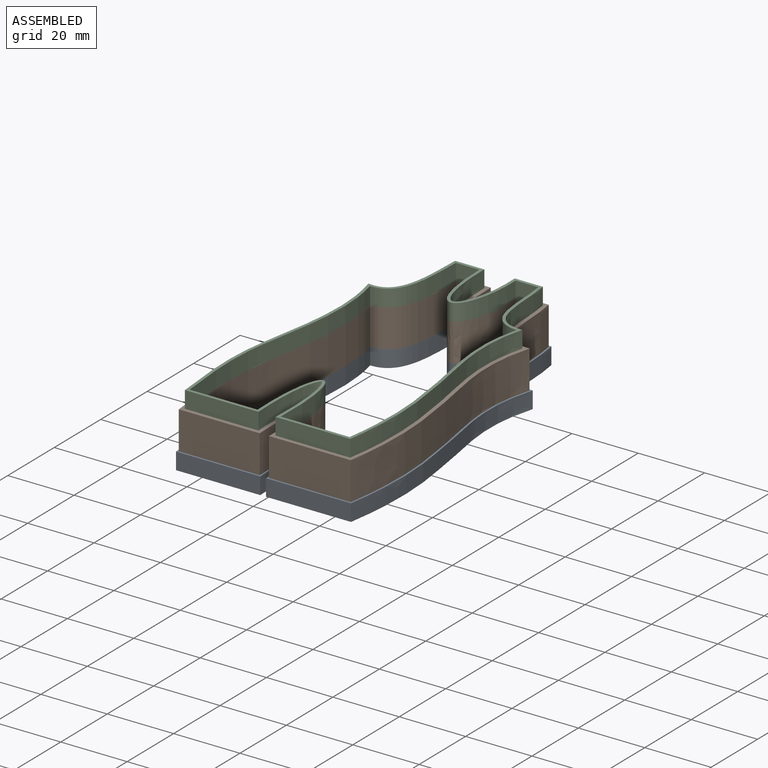
[diagram: assembled view]
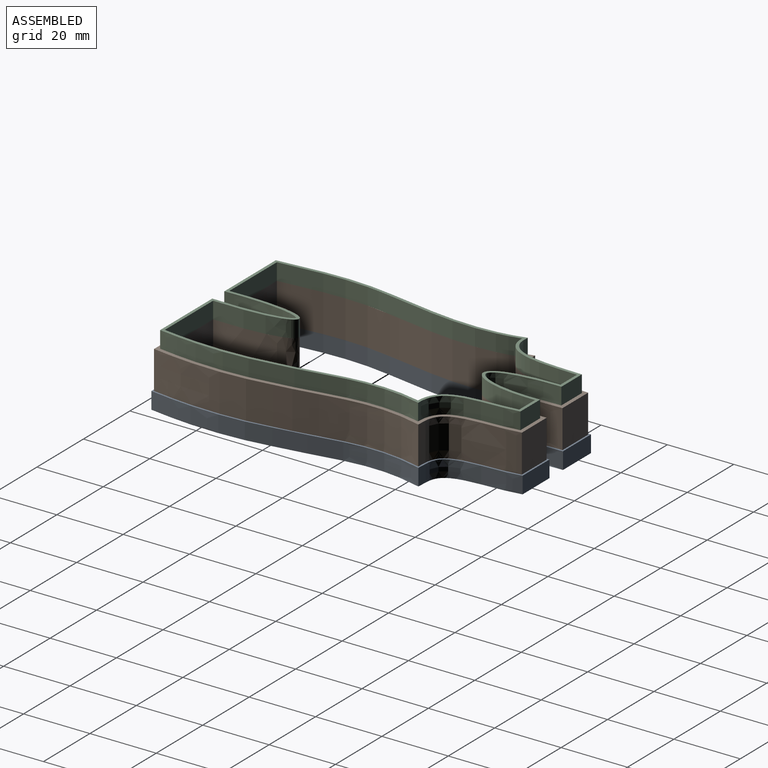
[diagram: assembled view, second angle]
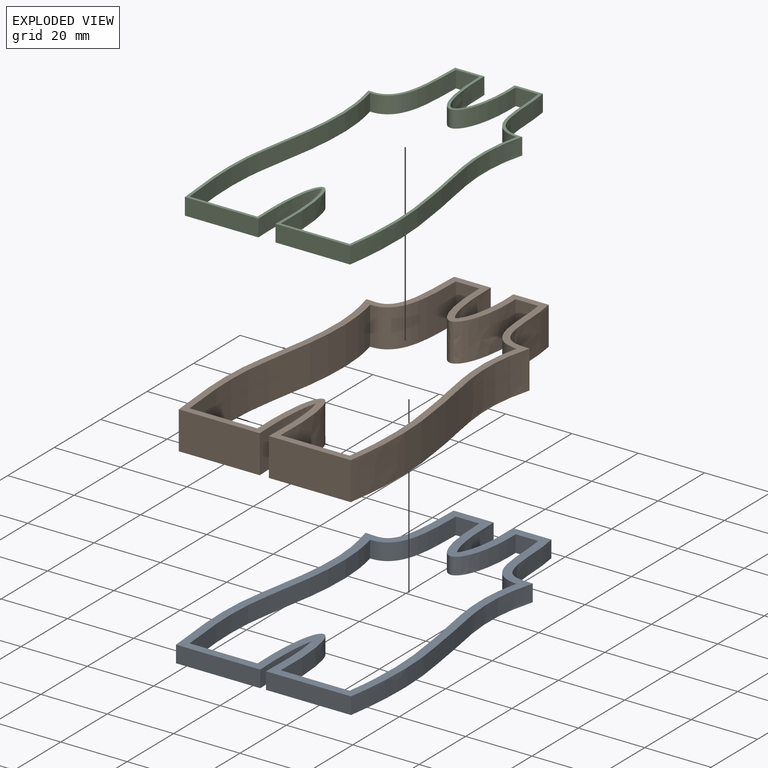
[diagram: exploded view]
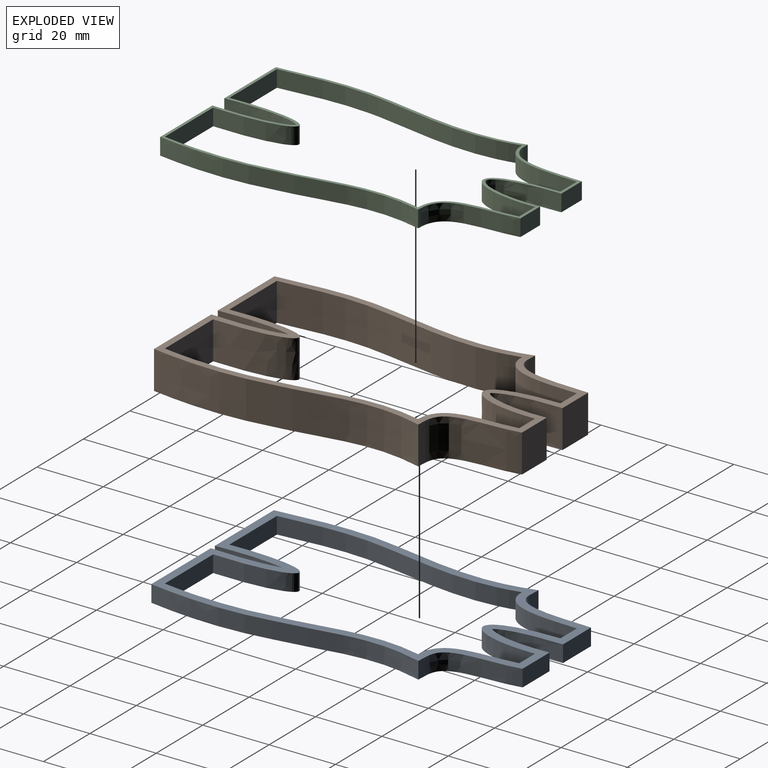
[diagram: exploded view, second angle]
ASSEMBLY  parts=3 mates=2
PART A: 28 faces, bbox 61.1x108.5x10.1 mm
  f0: plane 108.48x61.05mm, normal (0,0,1), area 933.5mm2, adj f2,f3,f4,f5,f6,f7,f8,f9
  f1: plane 108.48x61.05mm, normal (0,0,-1), area 933.5mm2, adj f2,f3,f4,f5,f6,f7,f8,f9
  f2: extruded ~19.49x5.08mm, area 101.8mm2, adj f0,f1,f13,f14
  f3: extruded ~20.88x5.08mm, area 106.4mm2, adj f0,f1,f7,f8
  f4: extruded ~23.25x10.41mm, area 151mm2, adj f0,f1,f5,f15
  f5: extruded ~43.43x5.08mm, area 223mm2, adj f0,f1,f4,f6
  f6: extruded ~36.91x5.08mm, area 188.3mm2, adj f0,f1,f5,f7
  f7: plane 25.39x5.08mm, normal (0,-1,0), area 129mm2, adj f0,f1,f3,f6
  f8: extruded ~20.88x5.08mm, area 106.4mm2, adj f0,f1,f3,f9
  f9: plane 25.62x5.08mm, normal (0,-1,0), area 130.2mm2, adj f0,f1,f8,f10
  f10: extruded ~36.81x5.08mm, area 187.8mm2, adj f0,f1,f9,f11
  f11: extruded ~42.94x5.08mm, area 220.9mm2, adj f0,f1,f10,f12
  f12: extruded ~23.71x11mm, area 153.1mm2, adj f0,f1,f11,f13
  f13: plane 11.59x5.08mm, normal (0,1,0), area 58.9mm2, adj f0,f1,f2,f12
  f14: extruded ~19.49x5.08mm, area 100.9mm2, adj f0,f1,f2,f15
  f15: plane 12.06x5.08mm, normal (0,1,0), area 61.3mm2, adj f0,f1,f4,f14
  f16: extruded ~23.25x9.57mm, area 142.5mm2, adj f0,f1,f17,f27
  f17: extruded ~41.21x5.08mm, area 211.3mm2, adj f0,f1,f16,f18
  f18: extruded ~33.92x5.08mm, area 173mm2, adj f0,f1,f17,f19
  f19: plane 20.45x5.08mm, normal (0,1,0), area 103.9mm2, adj f0,f1,f18,f20
  f20: extruded ~23.46x7.2mm, area 248.1mm2, adj f0,f1,f19,f21
  f21: plane 20.8x5.08mm, normal (0,1,0), area 105.6mm2, adj f0,f1,f20,f22
  f22: extruded ~33.92x5.08mm, area 173.1mm2, adj f0,f1,f21,f23
  f23: extruded ~40.9x5.08mm, area 209.9mm2, adj f0,f1,f22,f24
  f24: extruded ~23.56x9.94mm, area 144.4mm2, adj f0,f1,f23,f25
  f25: plane 6.81x5.08mm, normal (0,-1,0), area 34.6mm2, adj f0,f1,f24,f26
  f26: extruded ~19.69x10.98mm, area 218.6mm2, adj f0,f1,f25,f27
  f27: plane 7.09x5.08mm, normal (0,-1,0), area 36mm2, adj f0,f1,f16,f26
PART B: 28 faces, bbox 61.1x108.6x17.6 mm
  f0: plane 108.57x61.15mm, normal (0,0,1), area 742.3mm2, adj f2,f3,f4,f5,f6,f7,f8,f9
  f1: plane 108.57x61.15mm, normal (0,0,-1), area 742.3mm2, adj f2,f3,f4,f5,f6,f7,f8,f9
  f2: extruded ~19.67x11.43mm, area 234.1mm2, adj f0,f1,f13,f14
  f3: extruded ~22.3x11.43mm, area 256.5mm2, adj f0,f1,f7,f8
  f4: extruded ~23.26x11.43mm, area 337mm2, adj f0,f1,f5,f15
  f5: extruded ~42.98x11.43mm, area 496.8mm2, adj f0,f1,f4,f6
  f6: extruded ~36.31x11.43mm, area 416.7mm2, adj f0,f1,f5,f7
  f7: plane 24.41x11.43mm, normal (0,-1,0), area 279mm2, adj f0,f1,f3,f6
  f8: extruded ~22.3x11.43mm, area 256.5mm2, adj f0,f1,f3,f9
  f9: plane 24.66x11.43mm, normal (0,-1,0), area 281.8mm2, adj f0,f1,f8,f10
  f10: extruded ~36.23x11.43mm, area 416.1mm2, adj f0,f1,f9,f11
  f11: extruded ~42.53x11.43mm, area 491.5mm2, adj f0,f1,f10,f12
  f12: extruded ~23.68x11.43mm, area 342.2mm2, adj f0,f1,f11,f13
  f13: plane 11.43x10.63mm, normal (0,1,0), area 121.5mm2, adj f0,f1,f2,f12
  f14: extruded ~19.67x11.43mm, area 231.4mm2, adj f0,f1,f2,f15
  f15: plane 11.43x11.07mm, normal (0,1,0), area 126.5mm2, adj f0,f1,f4,f14
  f16: extruded ~23.25x11.43mm, area 320.7mm2, adj f0,f1,f17,f27
  f17: extruded ~41.21x11.43mm, area 475.4mm2, adj f0,f1,f16,f18
  f18: extruded ~33.92x11.43mm, area 389.2mm2, adj f0,f1,f17,f19
  f19: plane 20.45x11.43mm, normal (0,1,0), area 233.8mm2, adj f0,f1,f18,f20
  f20: extruded ~23.46x11.43mm, area 558.3mm2, adj f0,f1,f19,f21
  f21: plane 20.8x11.43mm, normal (0,1,0), area 237.7mm2, adj f0,f1,f20,f22
  f22: extruded ~33.92x11.43mm, area 389.4mm2, adj f0,f1,f21,f23
  f23: extruded ~40.9x11.43mm, area 472.3mm2, adj f0,f1,f22,f24
  f24: extruded ~23.56x11.43mm, area 324.8mm2, adj f0,f1,f23,f25
  f25: plane 11.43x6.81mm, normal (0,-1,0), area 77.8mm2, adj f0,f1,f24,f26
  f26: extruded ~19.69x11.43mm, area 491.8mm2, adj f0,f1,f25,f27
  f27: plane 11.43x7.09mm, normal (0,-1,0), area 81mm2, adj f0,f1,f16,f26
PART C: 27 faces, bbox 56.2x103.7x8.6 mm
  f0: plane 103.66x56.21mm, normal (0,0,1), area 318.7mm2, adj f2,f3,f4,f5,f6,f7,f8,f9
  f1: plane 103.64x56.21mm, normal (0,0,-1), area 318.7mm2, adj f2,f3,f4,f5,f6,f7,f8,f9
  f2: extruded ~23.46x5.08mm, area 121.5mm2, adj f0,f1,f6,f7
  f3: extruded ~23.25x9.86mm, area 145.8mm2, adj f0,f1,f4,f14
  f4: extruded ~41.98x5.08mm, area 215.4mm2, adj f0,f1,f3,f5
  f5: extruded ~34.97x5.08mm, area 178.3mm2, adj f0,f1,f4,f6
  f6: plane 22.18x5.08mm, normal (0,-1,0), area 112.7mm2, adj f0,f1,f2,f5
  f7: extruded ~23.46x5.08mm, area 121.5mm2, adj f0,f1,f2,f8
  f8: plane 22.49x5.08mm, normal (0,-1,0), area 114.2mm2, adj f0,f1,f7,f9
  f9: extruded ~34.93x5.08mm, area 178.2mm2, adj f0,f1,f8,f10
  f10: extruded ~41.61x5.08mm, area 213.7mm2, adj f0,f1,f9,f11
  f11: extruded ~23.61x10.31mm, area 147.6mm2, adj f0,f1,f10,f12
  f12: plane 8.48x5.08mm, normal (0,1,0), area 43.1mm2, adj f0,f1,f11,f13
  f13: extruded ~19.69x9.2mm, area 213.4mm2, adj f0,f1,f12,f14
  f14: plane 8.83x5.08mm, normal (0,1,0), area 44.8mm2, adj f0,f1,f3,f13
  f15: extruded ~23.25x9.57mm, area 142.5mm2, adj f0,f1,f16,f26
  f16: extruded ~41.21x5.08mm, area 211.3mm2, adj f0,f1,f15,f17
  f17: extruded ~33.92x5.08mm, area 173mm2, adj f0,f1,f16,f18
  f18: plane 20.45x5.08mm, normal (0,1,0), area 103.9mm2, adj f0,f1,f17,f19
  f19: extruded ~23.46x7.2mm, area 248.1mm2, adj f0,f1,f18,f20
  f20: plane 20.8x5.08mm, normal (0,1,0), area 105.6mm2, adj f0,f1,f19,f21
  f21: extruded ~33.92x5.08mm, area 173.1mm2, adj f0,f1,f20,f22
  f22: extruded ~40.9x5.08mm, area 209.9mm2, adj f0,f1,f21,f23
  f23: extruded ~23.56x9.94mm, area 144.4mm2, adj f0,f1,f22,f24
  f24: plane 6.81x5.08mm, normal (0,-1,0), area 34.6mm2, adj f0,f1,f23,f25
  f25: extruded ~19.69x10.98mm, area 218.6mm2, adj f0,f1,f24,f26
  f26: plane 7.09x5.08mm, normal (0,-1,0), area 36mm2, adj f0,f1,f15,f25
PLACE A at identity
PLACE B t=(138.32,2.41,5.08)mm
PLACE C t=(72.9,5.9,16.51)mm
MATE fastened B.f1 <-> A.f0  axis (0,0,1) through (43.26,28.5,5.08)mm
MATE fastened C.f1 <-> B.f0  axis (0,0,1) through (43.26,28.5,16.51)mm
